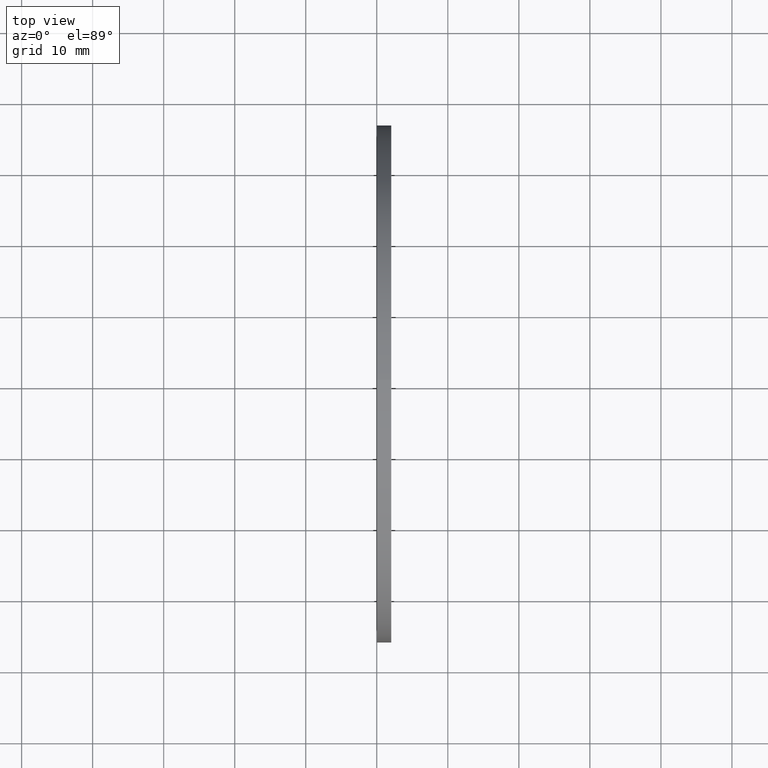
[diagram: clean part render]
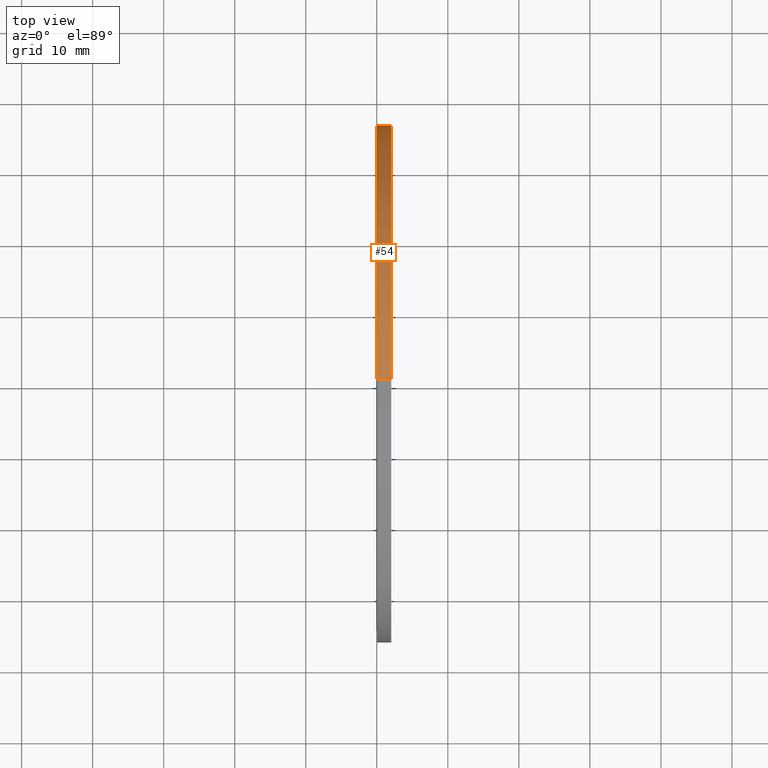
[diagram: same view with one face highlighted and labeled with its STEP entity id]
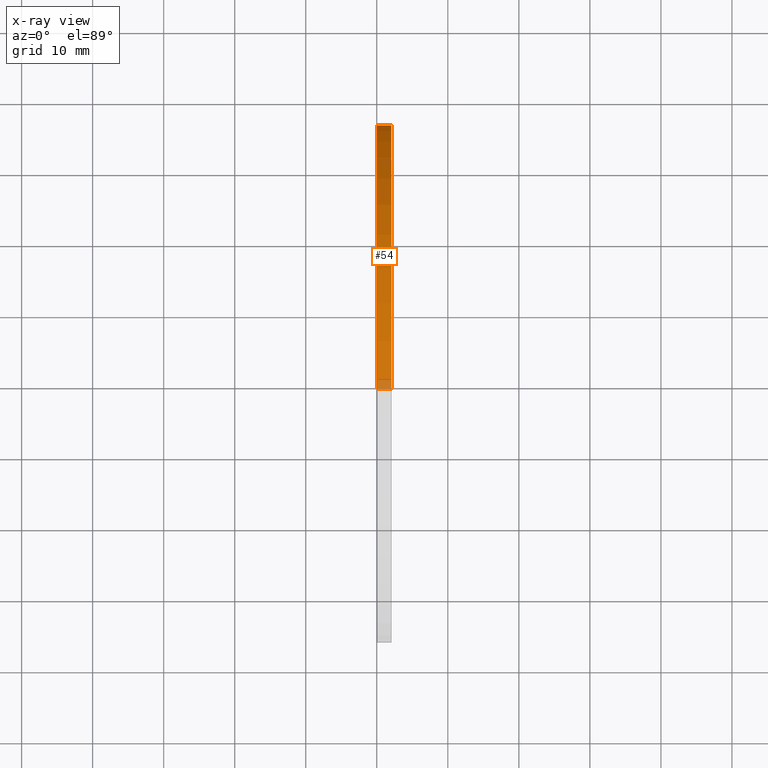
[diagram: x-ray of the same camera — body ghosted, the highlighted face saturated]
A machine part, top view. The second image highlights one B-rep face of the part: STEP entity #54.
The next image is the same camera in x-ray: the body ghosted, the highlighted face saturated — about 3% of this face is hidden behind the body in this view.
In plain terms, the highlighted cylindrical surface (partial cylindrical patch) has radius 36.449 mm, axis along (-1, 0, 0).
Its self-contained STEP definition (entity closure, byte-faithful):
#9 = EDGE_CURVE ( 'NONE', #49, #24, #84, .T. ) ;
#11 = ORIENTED_EDGE ( 'NONE', *, *, #9, .F. ) ;
#24 = VERTEX_POINT ( 'NONE', #78 ) ;
#34 = ORIENTED_EDGE ( 'NONE', *, *, #35, .F. ) ;
#35 = EDGE_CURVE ( 'NONE', #66, #49, #73, .T. ) ;
#45 = EDGE_CURVE ( 'NONE', #67, #24, #110, .T. ) ;
#49 = VERTEX_POINT ( 'NONE', #96 ) ;
#52 = ORIENTED_EDGE ( 'NONE', *, *, #45, .T. ) ;
#54 = ADVANCED_FACE ( 'NONE', ( #217 ), #207, .T. ) ;
#63 = EDGE_LOOP ( 'NONE', ( #64, #52, #11, #34 ) ) ;
#64 = ORIENTED_EDGE ( 'NONE', *, *, #65, .T. ) ;
#65 = EDGE_CURVE ( 'NONE', #66, #67, #189, .T. ) ;
#66 = VERTEX_POINT ( 'NONE', #184 ) ;
#67 = VERTEX_POINT ( 'NONE', #183 ) ;
#73 = LINE ( 'NONE', #121, #120 ) ;
#78 = CARTESIAN_POINT ( 'NONE',  ( 0.0000000000000000000, 1.757368156776452000E-016, -1.435000000000000100 ) ) ;
#80 = DIRECTION ( 'NONE',  ( 0.0000000000000000000, 0.0000000000000000000, 1.000000000000000000 ) ) ;
#81 = DIRECTION ( 'NONE',  ( -1.000000000000000000, 0.0000000000000000000, 0.0000000000000000000 ) ) ;
#82 = CARTESIAN_POINT ( 'NONE',  ( 0.0000000000000000000, 0.0000000000000000000, 0.0000000000000000000 ) ) ;
#83 = AXIS2_PLACEMENT_3D ( 'NONE', #82, #81, #80 ) ;
#84 = CIRCLE ( 'NONE', #83, 1.435000000000000100 ) ;
#96 = CARTESIAN_POINT ( 'NONE',  ( 0.0000000000000000000, 0.0000000000000000000, 1.435000000000000100 ) ) ;
#103 = DIRECTION ( 'NONE',  ( -1.000000000000000000, 0.0000000000000000000, 0.0000000000000000000 ) ) ;
#104 = VECTOR ( 'NONE', #103, 39.37007874015748100 ) ;
#105 = CARTESIAN_POINT ( 'NONE',  ( -1.721125226614714300, 1.757368156776452000E-016, -1.435000000000000100 ) ) ;
#110 = LINE ( 'NONE', #105, #104 ) ;
#119 = DIRECTION ( 'NONE',  ( -1.000000000000000000, 0.0000000000000000000, 0.0000000000000000000 ) ) ;
#120 = VECTOR ( 'NONE', #119, 39.37007874015748100 ) ;
#121 = CARTESIAN_POINT ( 'NONE',  ( -1.721125226614714300, 0.0000000000000000000, 1.435000000000000100 ) ) ;
#133 = DIRECTION ( 'NONE',  ( -1.000000000000000000, 0.0000000000000000000, 0.0000000000000000000 ) ) ;
#134 = AXIS2_PLACEMENT_3D ( 'NONE', #161, #133, #154 ) ;
#154 = DIRECTION ( 'NONE',  ( 0.0000000000000000000, 0.0000000000000000000, 1.000000000000000000 ) ) ;
#161 = CARTESIAN_POINT ( 'NONE',  ( -1.721125226614714300, 0.0000000000000000000, 0.0000000000000000000 ) ) ;
#183 = CARTESIAN_POINT ( 'NONE',  ( 0.07999999999999996000, 1.757368156776452000E-016, -1.435000000000000100 ) ) ;
#184 = CARTESIAN_POINT ( 'NONE',  ( 0.07999999999999996000, 0.0000000000000000000, 1.435000000000000100 ) ) ;
#185 = DIRECTION ( 'NONE',  ( 0.0000000000000000000, 0.0000000000000000000, 1.000000000000000000 ) ) ;
#186 = DIRECTION ( 'NONE',  ( -1.000000000000000000, 0.0000000000000000000, 0.0000000000000000000 ) ) ;
#187 = AXIS2_PLACEMENT_3D ( 'NONE', #213, #186, #185 ) ;
#189 = CIRCLE ( 'NONE', #187, 1.435000000000000100 ) ;
#207 = CYLINDRICAL_SURFACE ( 'NONE', #134, 1.435000000000000100 ) ;
#213 = CARTESIAN_POINT ( 'NONE',  ( 0.07999999999999996000, 0.0000000000000000000, 0.0000000000000000000 ) ) ;
#217 = FACE_OUTER_BOUND ( 'NONE', #63, .T. ) ;